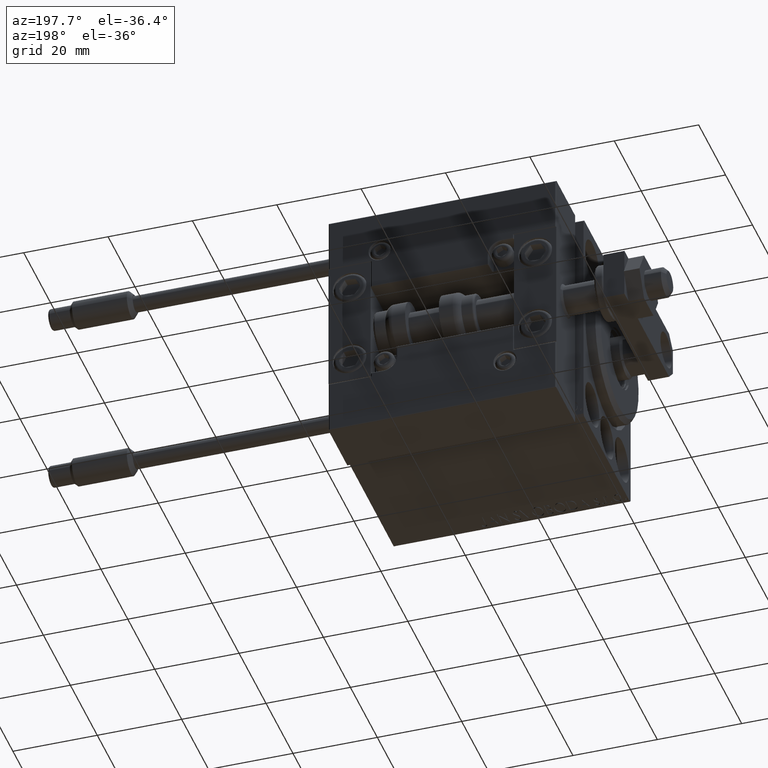
[diagram: clean part render]
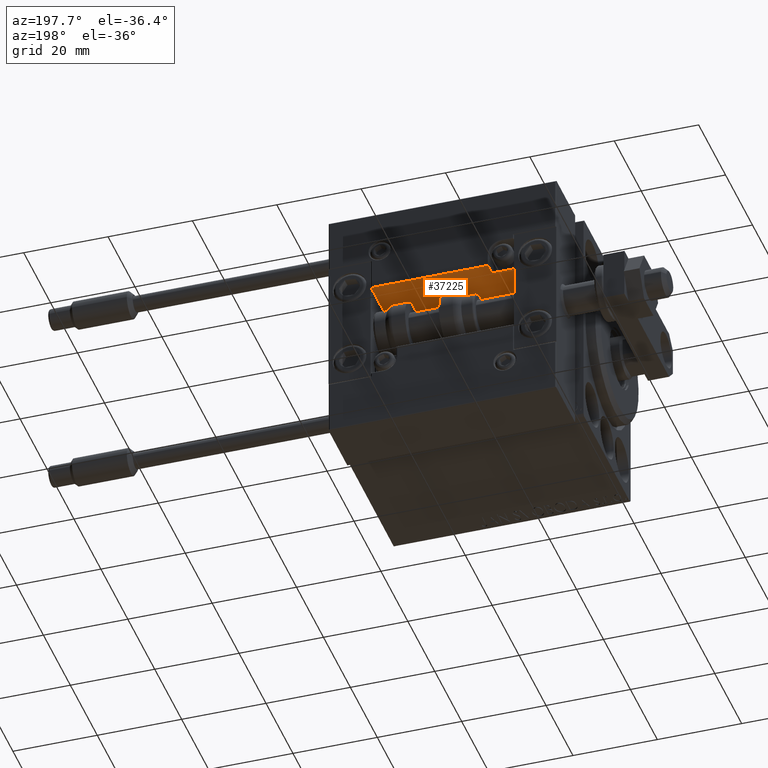
[diagram: same view with one face highlighted and labeled with its STEP entity id]
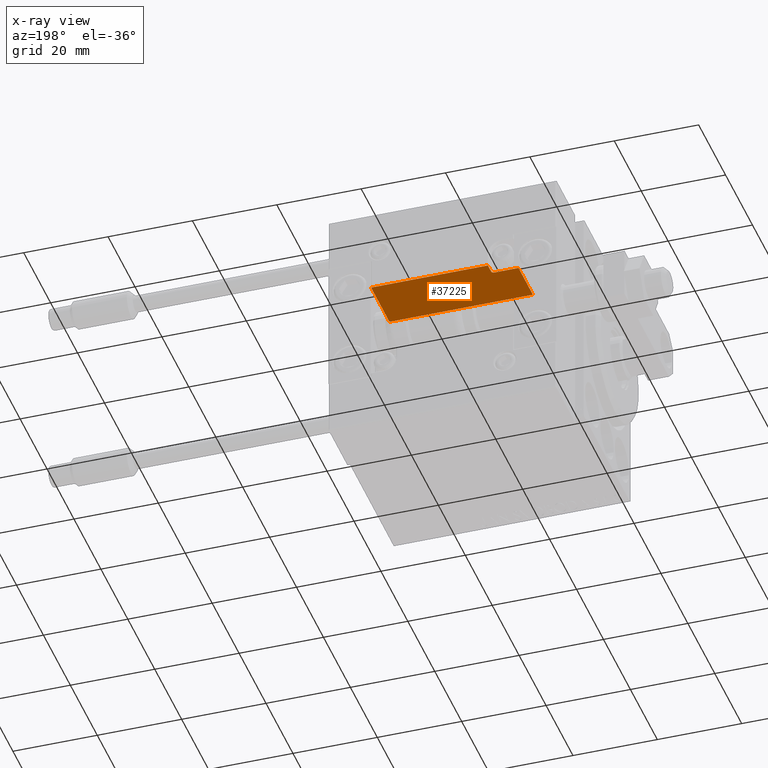
[diagram: x-ray of the same camera — body ghosted, the highlighted face saturated]
A machine part, auxiliary view. The second image highlights one B-rep face of the part: STEP entity #37225.
The next image is the same camera in x-ray: the body ghosted, the highlighted face saturated — about 0% of this face is hidden behind the body in this view.
In plain terms, the highlighted planar face has unit normal (0, 0, 1).
Its self-contained STEP definition (entity closure, byte-faithful):
#1164 = ORIENTED_EDGE ( 'NONE', *, *, #8296, .T. ) ;
#3235 = AXIS2_PLACEMENT_3D ( 'NONE', #25353, #40647, #40895 ) ;
#4198 = CARTESIAN_POINT ( 'NONE',  ( 11.00000000000000000, 3.252606517456513302E-15, 10.69999999999999929 ) ) ;
#4414 = VERTEX_POINT ( 'NONE', #10051 ) ;
#4922 = CARTESIAN_POINT ( 'NONE',  ( -16.99999999999999289, 3.252606517456513302E-15, 13.70000000000000107 ) ) ;
#5669 = CIRCLE ( 'NONE', #3235, 0.5999999999999998668 ) ;
#5829 = VERTEX_POINT ( 'NONE', #4922 ) ;
#5859 = EDGE_CURVE ( 'NONE', #4414, #20969, #8999, .T. ) ;
#6536 = DIRECTION ( 'NONE',  ( 0.000000000000000000, -0.000000000000000000, 1.000000000000000000 ) ) ;
#8146 = CARTESIAN_POINT ( 'NONE',  ( 10.70000000000000107, 3.252606517456513302E-15, 11.29999999999999893 ) ) ;
#8279 = DIRECTION ( 'NONE',  ( -1.000000000000000000, 0.000000000000000000, -0.000000000000000000 ) ) ;
#8296 = EDGE_CURVE ( 'NONE', #5829, #19438, #18837, .T. ) ;
#8999 = LINE ( 'NONE', #32687, #29775 ) ;
#9530 = CARTESIAN_POINT ( 'NONE',  ( 10.70000000000000107, 3.252606517456513302E-15, 13.70000000000000107 ) ) ;
#9942 = DIRECTION ( 'NONE',  ( 1.000000000000000000, 0.000000000000000000, 0.000000000000000000 ) ) ;
#10051 = CARTESIAN_POINT ( 'NONE',  ( 16.99999999999999289, 3.252606517456513302E-15, 10.69999999999999929 ) ) ;
#11414 = VECTOR ( 'NONE', #42933, 1000.000000000000000 ) ;
#13135 = EDGE_CURVE ( 'NONE', #23812, #16648, #34059, .T. ) ;
#15016 = DIRECTION ( 'NONE',  ( 0.000000000000000000, 1.000000000000000000, 0.000000000000000000 ) ) ;
#15529 = DIRECTION ( 'NONE',  ( 0.000000000000000000, -0.000000000000000000, 1.000000000000000000 ) ) ;
#16648 = VERTEX_POINT ( 'NONE', #9530 ) ;
#17015 = ORIENTED_EDGE ( 'NONE', *, *, #20147, .T. ) ;
#18482 = ORIENTED_EDGE ( 'NONE', *, *, #39565, .T. ) ;
#18837 = LINE ( 'NONE', #34381, #20791 ) ;
#18859 = FACE_OUTER_BOUND ( 'NONE', #28920, .T. ) ;
#18990 = AXIS2_PLACEMENT_3D ( 'NONE', #34914, #15016, #15529 ) ;
#19062 = EDGE_CURVE ( 'NONE', #23812, #44055, #5669, .T. ) ;
#19089 = DIRECTION ( 'NONE',  ( -0.000000000000000000, -0.000000000000000000, -1.000000000000000000 ) ) ;
#19308 = VECTOR ( 'NONE', #6536, 1000.000000000000000 ) ;
#19438 = VERTEX_POINT ( 'NONE', #40840 ) ;
#20147 = EDGE_CURVE ( 'NONE', #16648, #5829, #39103, .T. ) ;
#20791 = VECTOR ( 'NONE', #19089, 1000.000000000000000 ) ;
#20969 = VERTEX_POINT ( 'NONE', #37402 ) ;
#23606 = LINE ( 'NONE', #4198, #45928 ) ;
#23812 = VERTEX_POINT ( 'NONE', #8146 ) ;
#24672 = CARTESIAN_POINT ( 'NONE',  ( 11.29999999999999893, 3.252606517456513302E-15, 10.69999999999999929 ) ) ;
#25275 = ORIENTED_EDGE ( 'NONE', *, *, #5859, .F. ) ;
#25353 = CARTESIAN_POINT ( 'NONE',  ( 11.29999999999999893, 3.252606517456513302E-15, 11.29999999999999893 ) ) ;
#28878 = DIRECTION ( 'NONE',  ( -0.000000000000000000, -0.000000000000000000, -1.000000000000000000 ) ) ;
#28920 = EDGE_LOOP ( 'NONE', ( #25275, #18482, #32604, #30807, #17015, #1164, #47569 ) ) ;
#29775 = VECTOR ( 'NONE', #28878, 1000.000000000000000 ) ;
#30376 = VECTOR ( 'NONE', #9942, 1000.000000000000000 ) ;
#30807 = ORIENTED_EDGE ( 'NONE', *, *, #13135, .T. ) ;
#30968 = EDGE_CURVE ( 'NONE', #19438, #20969, #44894, .T. ) ;
#32604 = ORIENTED_EDGE ( 'NONE', *, *, #19062, .F. ) ;
#32687 = CARTESIAN_POINT ( 'NONE',  ( 16.99999999999999289, 3.252606517456513302E-15, 14.00000000000000000 ) ) ;
#34059 = LINE ( 'NONE', #41473, #19308 ) ;
#34381 = CARTESIAN_POINT ( 'NONE',  ( -16.99999999999999289, 3.252606517456513302E-15, 14.00000000000000000 ) ) ;
#34405 = PLANE ( 'NONE',  #18990 ) ;
#34914 = CARTESIAN_POINT ( 'NONE',  ( -16.99999999999999289, 3.252606517456513302E-15, 14.00000000000000000 ) ) ;
#35019 = CARTESIAN_POINT ( 'NONE',  ( -16.99999999999999289, 3.252606517456513302E-15, 13.70000000000000107 ) ) ;
#37225 = ADVANCED_FACE ( 'NONE', ( #18859 ), #34405, .F. ) ;
#37402 = CARTESIAN_POINT ( 'NONE',  ( 16.99999999999999289, 3.252606517456513302E-15, 0.000000000000000000 ) ) ;
#39103 = LINE ( 'NONE', #35019, #11414 ) ;
#39565 = EDGE_CURVE ( 'NONE', #4414, #44055, #23606, .T. ) ;
#40647 = DIRECTION ( 'NONE',  ( -0.000000000000000000, -1.000000000000000000, -0.000000000000000000 ) ) ;
#40840 = CARTESIAN_POINT ( 'NONE',  ( -16.99999999999999289, 3.252606517456513302E-15, 0.000000000000000000 ) ) ;
#40895 = DIRECTION ( 'NONE',  ( 0.000000000000000000, 0.000000000000000000, 1.000000000000000000 ) ) ;
#41473 = CARTESIAN_POINT ( 'NONE',  ( 10.70000000000000107, 3.252606517456513302E-15, 14.00000000000000000 ) ) ;
#41835 = CARTESIAN_POINT ( 'NONE',  ( -16.99999999999999289, 3.252606517456513302E-15, 0.000000000000000000 ) ) ;
#42933 = DIRECTION ( 'NONE',  ( -1.000000000000000000, 0.000000000000000000, -0.000000000000000000 ) ) ;
#44055 = VERTEX_POINT ( 'NONE', #24672 ) ;
#44894 = LINE ( 'NONE', #41835, #30376 ) ;
#45928 = VECTOR ( 'NONE', #8279, 1000.000000000000000 ) ;
#47569 = ORIENTED_EDGE ( 'NONE', *, *, #30968, .T. ) ;